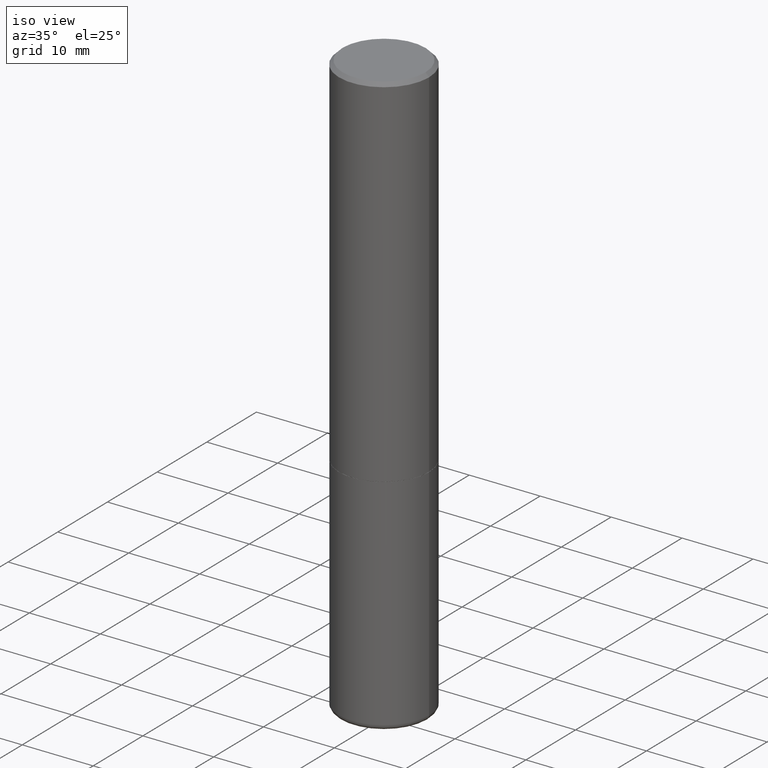
[diagram: clean part render]
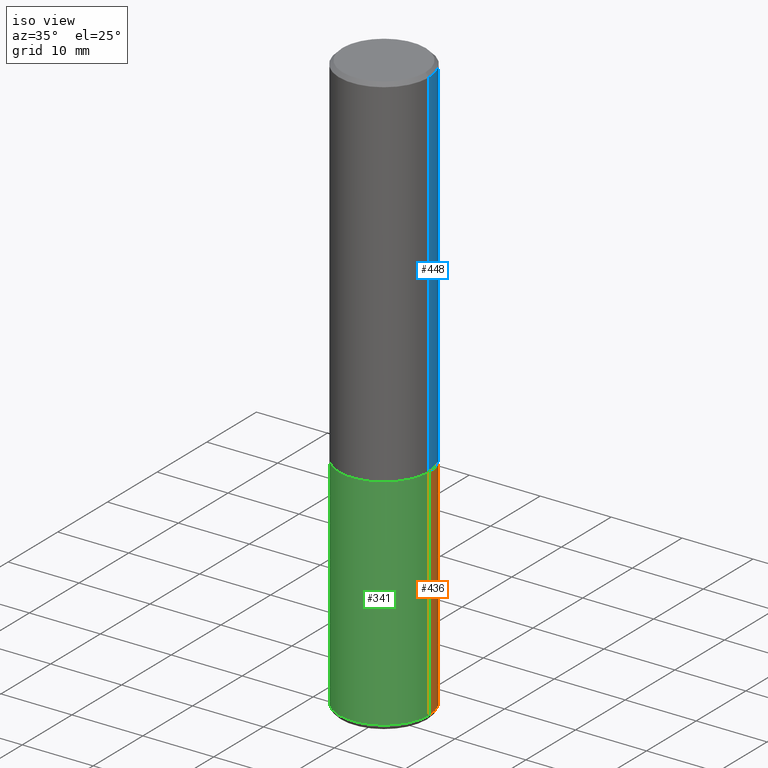
[diagram: same view with three faces highlighted in distinct colors, each labeled with its STEP entity id]
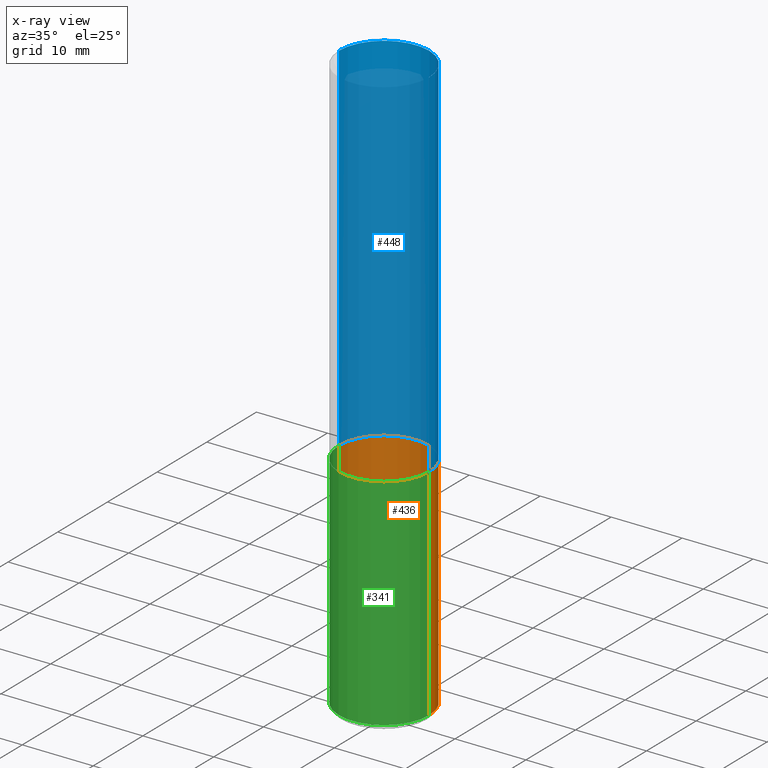
[diagram: x-ray of the same camera — body ghosted, the three highlighted faces saturated]
A machine part, iso view with three faces highlighted in distinct colors.
The next image is the same camera in x-ray (body ghosted, the three faces saturated) — at least one of them is partly hidden behind the body in this view.
Their STEP definitions:

[orange] entity #436 — the highlighted cylindrical surface (partial cylindrical patch) has radius 6.35 mm, axis along (-0, 0, 1).
#23 = ORIENTED_EDGE ( 'NONE', *, *, #261, .F. ) ;
#33 = VERTEX_POINT ( 'NONE', #403 ) ;
#35 = VERTEX_POINT ( 'NONE', #223 ) ;
#39 = DIRECTION ( 'NONE',  ( -2.445468806185136597E-29, 3.491481338843145583E-15, 1.000000000000000000 ) ) ;
#54 = LINE ( 'NONE', #438, #330 ) ;
#58 = AXIS2_PLACEMENT_3D ( 'NONE', #196, #39, #352 ) ;
#62 = DIRECTION ( 'NONE',  ( 1.000000000000000000, -6.982962677686269077E-15, 0.000000000000000000 ) ) ;
#67 = CIRCLE ( 'NONE', #150, 0.2500000000000000555 ) ;
#89 = CARTESIAN_POINT ( 'NONE',  ( 0.2500000000000000555, -1.298831456884382237E-14, -3.220001142308074993 ) ) ;
#96 = ORIENTED_EDGE ( 'NONE', *, *, #439, .T. ) ;
#125 = CARTESIAN_POINT ( 'NONE',  ( -0.2500000000000000555, -7.336411449154020205E-15, -3.220001142308074993 ) ) ;
#127 = EDGE_LOOP ( 'NONE', ( #96, #360, #447, #23 ) ) ;
#146 = EDGE_CURVE ( 'NONE', #35, #33, #200, .T. ) ;
#149 = CARTESIAN_POINT ( 'NONE',  ( 0.000000000000000000, 0.000000000000000000, 0.000000000000000000 ) ) ;
#150 = AXIS2_PLACEMENT_3D ( 'NONE', #220, #214, #62 ) ;
#185 = CYLINDRICAL_SURFACE ( 'NONE', #452, 0.2499999999999998612 ) ;
#188 = VECTOR ( 'NONE', #429, 39.37007874015748143 ) ;
#196 = CARTESIAN_POINT ( 'NONE',  ( 4.890937612370273194E-29, -6.982962677686291165E-15, -2.000000000000000000 ) ) ;
#200 = CIRCLE ( 'NONE', #58, 0.2499999999999996669 ) ;
#205 = LINE ( 'NONE', #279, #188 ) ;
#214 = DIRECTION ( 'NONE',  ( -2.445468806185136597E-29, 3.491481338843145583E-15, 1.000000000000000000 ) ) ;
#220 = CARTESIAN_POINT ( 'NONE',  ( 7.874412349394905166E-29, -1.124257389942225570E-14, -3.220001142308074993 ) ) ;
#223 = CARTESIAN_POINT ( 'NONE',  ( 0.2499999999999996669, -8.728703347107855476E-15, -2.000000000000000000 ) ) ;
#235 = EDGE_CURVE ( 'NONE', #294, #33, #205, .T. ) ;
#244 = DIRECTION ( 'NONE',  ( -2.445468806185136877E-29, 3.491481338843145188E-15, 1.000000000000000000 ) ) ;
#261 = EDGE_CURVE ( 'NONE', #295, #35, #54, .T. ) ;
#279 = CARTESIAN_POINT ( 'NONE',  ( -0.2499999999999998612, 1.776356839400249479E-15, -1.229733772563725745E-29 ) ) ;
#294 = VERTEX_POINT ( 'NONE', #125 ) ;
#295 = VERTEX_POINT ( 'NONE', #89 ) ;
#330 = VECTOR ( 'NONE', #244, 39.37007874015748143 ) ;
#334 = DIRECTION ( 'NONE',  ( 1.000000000000000000, -6.982962677686266711E-15, 4.876176775795935793E-29 ) ) ;
#352 = DIRECTION ( 'NONE',  ( 1.000000000000000000, -6.982962677686268288E-15, 0.000000000000000000 ) ) ;
#360 = ORIENTED_EDGE ( 'NONE', *, *, #235, .T. ) ;
#397 = DIRECTION ( 'NONE',  ( -2.445468806185136597E-29, 3.491481338843145583E-15, 1.000000000000000000 ) ) ;
#403 = CARTESIAN_POINT ( 'NONE',  ( -0.2499999999999996669, -7.336411449154023361E-15, -2.000000000000000000 ) ) ;
#429 = DIRECTION ( 'NONE',  ( -2.445468806185136877E-29, 3.491481338843145188E-15, 1.000000000000000000 ) ) ;
#436 = ADVANCED_FACE ( 'NONE', ( #441 ), #185, .T. ) ;
#438 = CARTESIAN_POINT ( 'NONE',  ( 0.2499999999999998612, -1.745740669421565692E-15, 1.219044193948983248E-29 ) ) ;
#439 = EDGE_CURVE ( 'NONE', #295, #294, #67, .T. ) ;
#441 = FACE_OUTER_BOUND ( 'NONE', #127, .T. ) ;
#447 = ORIENTED_EDGE ( 'NONE', *, *, #146, .F. ) ;
#452 = AXIS2_PLACEMENT_3D ( 'NONE', #149, #397, #334 ) ;

[blue] entity #448 — the highlighted cylindrical surface (partial cylindrical patch) has radius 6.35 mm, axis along (-0, 0, 1).
#49 = DIRECTION ( 'NONE',  ( -2.445468806185136877E-29, 3.491481338843145188E-15, 1.000000000000000000 ) ) ;
#64 = ORIENTED_EDGE ( 'NONE', *, *, #248, .F. ) ;
#94 = ORIENTED_EDGE ( 'NONE', *, *, #394, .T. ) ;
#100 = CIRCLE ( 'NONE', #209, 0.2499999999999996669 ) ;
#107 = ORIENTED_EDGE ( 'NONE', *, *, #237, .T. ) ;
#126 = EDGE_CURVE ( 'NONE', #166, #287, #266, .T. ) ;
#161 = CARTESIAN_POINT ( 'NONE',  ( 0.2499999999999996669, -8.725211865769010891E-15, -1.998999999999999888 ) ) ;
#166 = VERTEX_POINT ( 'NONE', #161 ) ;
#168 = CARTESIAN_POINT ( 'NONE',  ( -0.2499999999999994171, 1.675911042644699238E-15, -0.02000000000000012879 ) ) ;
#198 = CARTESIAN_POINT ( 'NONE',  ( 4.890937612370304688E-31, -6.982962677686335982E-17, -0.02000000000000012879 ) ) ;
#203 = DIRECTION ( 'NONE',  ( -2.445468806185136597E-29, 3.491481338843145583E-15, 1.000000000000000000 ) ) ;
#209 = AXIS2_PLACEMENT_3D ( 'NONE', #314, #466, #389 ) ;
#234 = LINE ( 'NONE', #387, #315 ) ;
#237 = EDGE_CURVE ( 'NONE', #166, #247, #100, .T. ) ;
#247 = VERTEX_POINT ( 'NONE', #426 ) ;
#248 = EDGE_CURVE ( 'NONE', #287, #252, #489, .T. ) ;
#251 = FACE_OUTER_BOUND ( 'NONE', #474, .T. ) ;
#252 = VERTEX_POINT ( 'NONE', #168 ) ;
#257 = AXIS2_PLACEMENT_3D ( 'NONE', #198, #203, #319 ) ;
#262 = DIRECTION ( 'NONE',  ( -2.445468806185136877E-29, 3.491481338843145188E-15, 1.000000000000000000 ) ) ;
#264 = CARTESIAN_POINT ( 'NONE',  ( 0.2499999999999995282, -1.745740669421563325E-15, 1.219044193948981566E-29 ) ) ;
#266 = LINE ( 'NONE', #264, #488 ) ;
#287 = VERTEX_POINT ( 'NONE', #396 ) ;
#292 = DIRECTION ( 'NONE',  ( -2.445468806185136597E-29, 3.491481338843145583E-15, 1.000000000000000000 ) ) ;
#314 = CARTESIAN_POINT ( 'NONE',  ( 4.888492143564087591E-29, -6.979471196347447369E-15, -1.998999999999999888 ) ) ;
#315 = VECTOR ( 'NONE', #49, 39.37007874015748143 ) ;
#319 = DIRECTION ( 'NONE',  ( 1.000000000000000000, -6.982962677686266711E-15, 0.000000000000000000 ) ) ;
#356 = AXIS2_PLACEMENT_3D ( 'NONE', #369, #292, #486 ) ;
#367 = CYLINDRICAL_SURFACE ( 'NONE', #356, 0.2499999999999995282 ) ;
#369 = CARTESIAN_POINT ( 'NONE',  ( 0.000000000000000000, 0.000000000000000000, 0.000000000000000000 ) ) ;
#387 = CARTESIAN_POINT ( 'NONE',  ( -0.2499999999999995282, 1.776356839400247112E-15, -1.229733772563724063E-29 ) ) ;
#389 = DIRECTION ( 'NONE',  ( 1.000000000000000000, -6.982962677686264344E-15, 0.000000000000000000 ) ) ;
#394 = EDGE_CURVE ( 'NONE', #247, #252, #234, .T. ) ;
#396 = CARTESIAN_POINT ( 'NONE',  ( 0.2499999999999994171, -1.784954126219742244E-15, -0.02000000000000012879 ) ) ;
#426 = CARTESIAN_POINT ( 'NONE',  ( -0.2499999999999996114, -1.748293572161906447E-15, -1.998999999999999888 ) ) ;
#448 = ADVANCED_FACE ( 'NONE', ( #251 ), #367, .T. ) ;
#466 = DIRECTION ( 'NONE',  ( -2.445468806185136597E-29, 3.491481338843145583E-15, 1.000000000000000000 ) ) ;
#472 = ORIENTED_EDGE ( 'NONE', *, *, #126, .F. ) ;
#474 = EDGE_LOOP ( 'NONE', ( #107, #94, #64, #472 ) ) ;
#486 = DIRECTION ( 'NONE',  ( 1.000000000000000000, -6.982962677686266711E-15, 4.876176775795935232E-29 ) ) ;
#488 = VECTOR ( 'NONE', #262, 39.37007874015748143 ) ;
#489 = CIRCLE ( 'NONE', #257, 0.2499999999999994171 ) ;

[green] entity #341 — the highlighted cylindrical surface (partial cylindrical patch) has radius 6.35 mm, axis along (-0, 0, 1).
#22 = FACE_OUTER_BOUND ( 'NONE', #277, .T. ) ;
#33 = VERTEX_POINT ( 'NONE', #403 ) ;
#35 = VERTEX_POINT ( 'NONE', #223 ) ;
#37 = AXIS2_PLACEMENT_3D ( 'NONE', #176, #325, #476 ) ;
#50 = CIRCLE ( 'NONE', #347, 0.2499999999999996669 ) ;
#54 = LINE ( 'NONE', #438, #330 ) ;
#87 = EDGE_CURVE ( 'NONE', #33, #35, #50, .T. ) ;
#89 = CARTESIAN_POINT ( 'NONE',  ( 0.2500000000000000555, -1.298831456884382237E-14, -3.220001142308074993 ) ) ;
#99 = AXIS2_PLACEMENT_3D ( 'NONE', #311, #228, #346 ) ;
#110 = ORIENTED_EDGE ( 'NONE', *, *, #235, .F. ) ;
#125 = CARTESIAN_POINT ( 'NONE',  ( -0.2500000000000000555, -7.336411449154020205E-15, -3.220001142308074993 ) ) ;
#129 = ORIENTED_EDGE ( 'NONE', *, *, #178, .T. ) ;
#154 = DIRECTION ( 'NONE',  ( -2.445468806185136597E-29, 3.491481338843145583E-15, 1.000000000000000000 ) ) ;
#171 = ORIENTED_EDGE ( 'NONE', *, *, #87, .F. ) ;
#176 = CARTESIAN_POINT ( 'NONE',  ( 0.000000000000000000, 0.000000000000000000, 0.000000000000000000 ) ) ;
#178 = EDGE_CURVE ( 'NONE', #294, #295, #313, .T. ) ;
#188 = VECTOR ( 'NONE', #429, 39.37007874015748143 ) ;
#201 = CYLINDRICAL_SURFACE ( 'NONE', #37, 0.2499999999999998612 ) ;
#205 = LINE ( 'NONE', #279, #188 ) ;
#223 = CARTESIAN_POINT ( 'NONE',  ( 0.2499999999999996669, -8.728703347107855476E-15, -2.000000000000000000 ) ) ;
#228 = DIRECTION ( 'NONE',  ( -2.445468806185136597E-29, 3.491481338843145583E-15, 1.000000000000000000 ) ) ;
#235 = EDGE_CURVE ( 'NONE', #294, #33, #205, .T. ) ;
#244 = DIRECTION ( 'NONE',  ( -2.445468806185136877E-29, 3.491481338843145188E-15, 1.000000000000000000 ) ) ;
#261 = EDGE_CURVE ( 'NONE', #295, #35, #54, .T. ) ;
#277 = EDGE_LOOP ( 'NONE', ( #110, #129, #326, #171 ) ) ;
#279 = CARTESIAN_POINT ( 'NONE',  ( -0.2499999999999998612, 1.776356839400249479E-15, -1.229733772563725745E-29 ) ) ;
#294 = VERTEX_POINT ( 'NONE', #125 ) ;
#295 = VERTEX_POINT ( 'NONE', #89 ) ;
#311 = CARTESIAN_POINT ( 'NONE',  ( 7.874412349394905166E-29, -1.124257389942225570E-14, -3.220001142308074993 ) ) ;
#313 = CIRCLE ( 'NONE', #99, 0.2500000000000000555 ) ;
#325 = DIRECTION ( 'NONE',  ( -2.445468806185136597E-29, 3.491481338843145583E-15, 1.000000000000000000 ) ) ;
#326 = ORIENTED_EDGE ( 'NONE', *, *, #261, .T. ) ;
#330 = VECTOR ( 'NONE', #244, 39.37007874015748143 ) ;
#341 = ADVANCED_FACE ( 'NONE', ( #22 ), #201, .T. ) ;
#346 = DIRECTION ( 'NONE',  ( 1.000000000000000000, -6.982962677686269077E-15, 0.000000000000000000 ) ) ;
#347 = AXIS2_PLACEMENT_3D ( 'NONE', #418, #154, #491 ) ;
#403 = CARTESIAN_POINT ( 'NONE',  ( -0.2499999999999996669, -7.336411449154023361E-15, -2.000000000000000000 ) ) ;
#418 = CARTESIAN_POINT ( 'NONE',  ( 4.890937612370273194E-29, -6.982962677686291165E-15, -2.000000000000000000 ) ) ;
#429 = DIRECTION ( 'NONE',  ( -2.445468806185136877E-29, 3.491481338843145188E-15, 1.000000000000000000 ) ) ;
#438 = CARTESIAN_POINT ( 'NONE',  ( 0.2499999999999998612, -1.745740669421565692E-15, 1.219044193948983248E-29 ) ) ;
#476 = DIRECTION ( 'NONE',  ( 1.000000000000000000, -6.982962677686266711E-15, 4.876176775795935793E-29 ) ) ;
#491 = DIRECTION ( 'NONE',  ( 1.000000000000000000, -6.982962677686268288E-15, 0.000000000000000000 ) ) ;